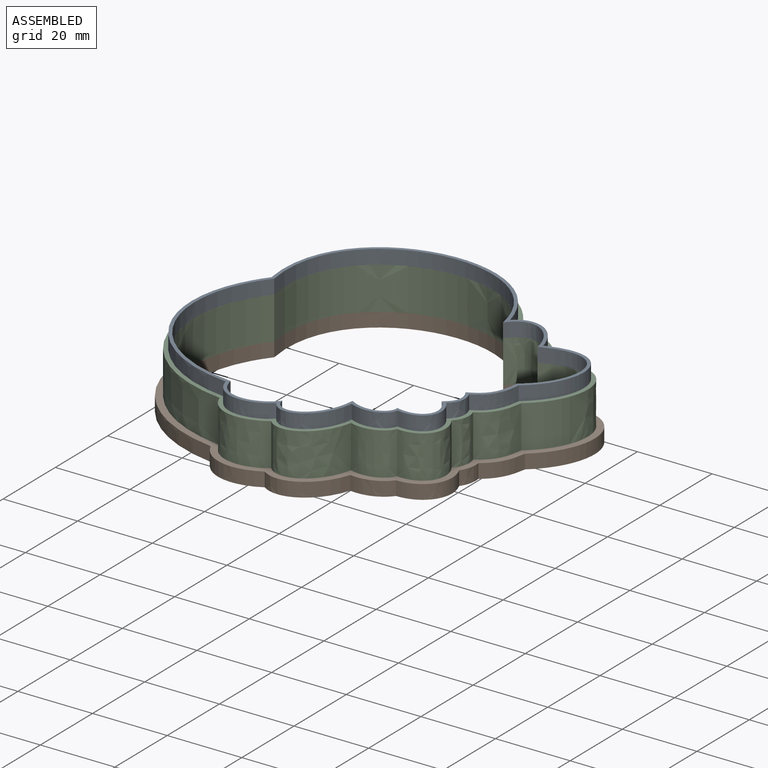
[diagram: assembled view]
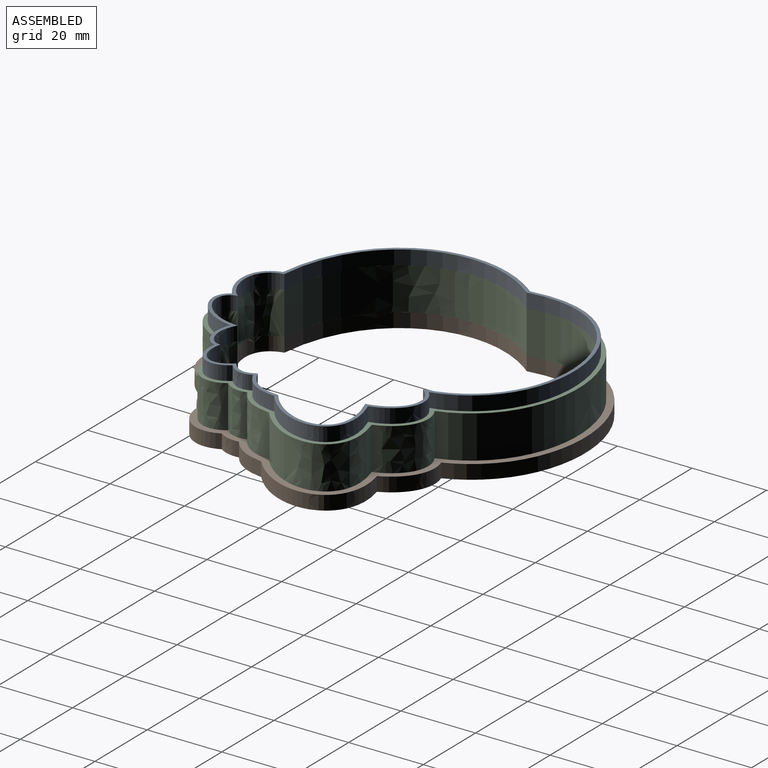
[diagram: assembled view, second angle]
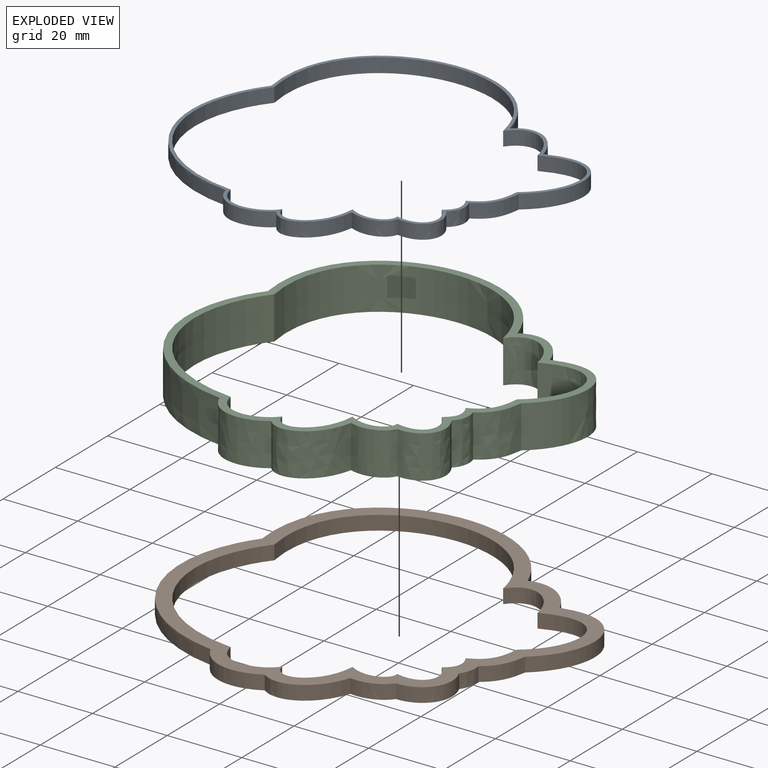
[diagram: exploded view]
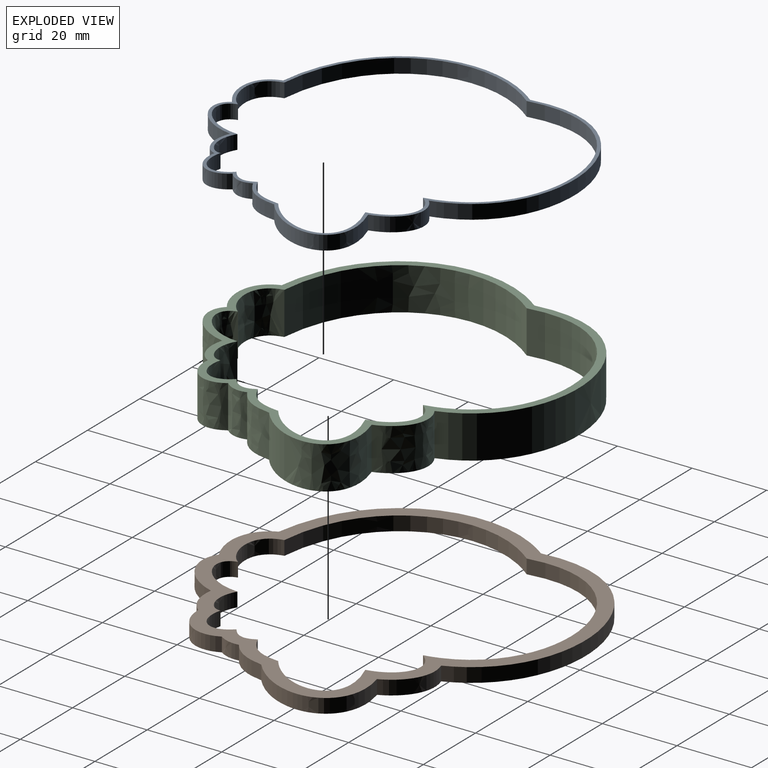
[diagram: exploded view, second angle]
ASSEMBLY  parts=3 mates=2
PART A: 22 faces, bbox 96.3x93.5x3.8 mm
  f0: plane 96.31x93.55mm, normal (0,0,1), area 264mm2, adj f2,f3,f4,f5,f6,f7,f8,f9
  f1: plane 96.31x93.55mm, normal (0,0,-1), area 264mm2, adj f2,f3,f4,f5,f6,f7,f8,f9
  f2: extruded ~13.81x11.45mm, area 80.7mm2, adj f0,f1,f3,f11
  f3: extruded ~10.24x3.81mm, area 45.6mm2, adj f0,f1,f2,f4
  f4: extruded ~9.57x8.18mm, area 60.1mm2, adj f0,f1,f3,f5
  f5: extruded ~6.56x3.81mm, area 28mm2, adj f0,f1,f4,f6
  f6: extruded ~10.06x6.28mm, area 47.7mm2, adj f0,f1,f5,f7
  f7: extruded ~21.46x15.3mm, area 138.6mm2, adj f0,f1,f6,f8
  f8: extruded ~13.63x8.82mm, area 71.5mm2, adj f0,f1,f7,f9
  f9: extruded ~56.03x31.8mm, area 326mm2, adj f0,f1,f8,f10
  f10: extruded ~50.14x30.15mm, area 261.3mm2, adj f0,f1,f9,f11
  f11: extruded ~15.52x5.8mm, area 72.7mm2, adj f0,f1,f2,f10
  f12: extruded ~12.74x11.95mm, area 82.3mm2, adj f0,f1,f13,f21
  f13: extruded ~10.2x3.99mm, area 47.8mm2, adj f0,f1,f12,f14
  f14: extruded ~8.81x8.1mm, area 59.2mm2, adj f0,f1,f13,f15
  f15: extruded ~6.84x3.81mm, area 30.5mm2, adj f0,f1,f14,f16
  f16: extruded ~10.13x6.67mm, area 49.3mm2, adj f0,f1,f15,f17
  f17: extruded ~20.08x15.06mm, area 134.4mm2, adj f0,f1,f16,f18
  f18: extruded ~13.46x9.15mm, area 74.8mm2, adj f0,f1,f17,f19
  f19: extruded ~54.65x31.16mm, area 323.8mm2, adj f0,f1,f18,f20
  f20: extruded ~49.07x29.99mm, area 258mm2, adj f0,f1,f19,f21
  f21: extruded ~15.1x5.73mm, area 73.3mm2, adj f0,f1,f12,f20
PART B: 22 faces, bbox 98.1x96.3x4.2 mm
  f0: plane 98.06x96.33mm, normal (0,0,1), area 1144.2mm2, adj f2,f3,f4,f5,f6,f7,f8,f9
  f1: plane 98.06x96.33mm, normal (0,0,-1), area 1144.2mm2, adj f2,f3,f4,f5,f6,f7,f8,f9
  f2: extruded ~16.39x10.71mm, area 83.1mm2, adj f0,f1,f3,f11
  f3: extruded ~9.79x3.81mm, area 41.6mm2, adj f0,f1,f2,f4
  f4: extruded ~12.17x9.37mm, area 68.7mm2, adj f0,f1,f3,f5
  f5: extruded ~5.52x3.81mm, area 22.2mm2, adj f0,f1,f4,f6
  f6: extruded ~9.88x5.57mm, area 44.6mm2, adj f0,f1,f5,f7
  f7: extruded ~25.93x16.38mm, area 154.1mm2, adj f0,f1,f6,f8
  f8: extruded ~13.82x8.08mm, area 66.2mm2, adj f0,f1,f7,f9
  f9: extruded ~60.61x33.92mm, area 340.2mm2, adj f0,f1,f8,f10
  f10: extruded ~53.6x30.91mm, area 273.1mm2, adj f0,f1,f9,f11
  f11: extruded ~17.28x6.06mm, area 76.5mm2, adj f0,f1,f2,f10
  f12: extruded ~12.74x11.95mm, area 82.3mm2, adj f0,f1,f13,f21
  f13: extruded ~10.2x3.99mm, area 47.8mm2, adj f0,f1,f12,f14
  f14: extruded ~8.81x8.1mm, area 59.2mm2, adj f0,f1,f13,f15
  f15: extruded ~6.84x3.81mm, area 30.5mm2, adj f0,f1,f14,f16
  f16: extruded ~10.13x6.67mm, area 49.3mm2, adj f0,f1,f15,f17
  f17: extruded ~20.08x15.06mm, area 134.4mm2, adj f0,f1,f16,f18
  f18: extruded ~13.46x9.15mm, area 74.8mm2, adj f0,f1,f17,f19
  f19: extruded ~54.65x31.16mm, area 323.8mm2, adj f0,f1,f18,f20
  f20: extruded ~49.07x29.99mm, area 258mm2, adj f0,f1,f19,f21
  f21: extruded ~15.1x5.73mm, area 73.3mm2, adj f0,f1,f12,f20
PART C: 22 faces, bbox 96.3x94.2x11.4 mm
  f0: plane 96.31x94.18mm, normal (0,0,1), area 605.3mm2, adj f2,f3,f4,f5,f6,f7,f8,f9
  f1: plane 96.31x94.18mm, normal (0,0,-1), area 605.3mm2, adj f2,f3,f4,f5,f6,f7,f8,f9
  f2: extruded ~14.93x11.43mm, area 243mm2, adj f0,f1,f3,f11
  f3: extruded ~11.43x10.11mm, area 131.2mm2, adj f0,f1,f2,f4
  f4: extruded ~11.43x10.57mm, area 188.8mm2, adj f0,f1,f3,f5
  f5: extruded ~11.43x6.17mm, area 76.4mm2, adj f0,f1,f4,f6
  f6: extruded ~11.43x9.98mm, area 138.5mm2, adj f0,f1,f5,f7
  f7: extruded ~23.2x15.68mm, area 433.3mm2, adj f0,f1,f6,f8
  f8: extruded ~13.76x11.43mm, area 206.7mm2, adj f0,f1,f7,f9
  f9: extruded ~57.79x32.61mm, area 992.3mm2, adj f0,f1,f8,f10
  f10: extruded ~51.5x30.41mm, area 797.4mm2, adj f0,f1,f9,f11
  f11: extruded ~16.18x11.43mm, area 221mm2, adj f0,f1,f2,f10
  f12: extruded ~12.74x11.95mm, area 246.8mm2, adj f0,f1,f13,f21
  f13: extruded ~11.43x10.2mm, area 143.5mm2, adj f0,f1,f12,f14
  f14: extruded ~11.43x8.81mm, area 177.6mm2, adj f0,f1,f13,f15
  f15: extruded ~11.43x6.84mm, area 91.4mm2, adj f0,f1,f14,f16
  f16: extruded ~11.43x10.13mm, area 147.9mm2, adj f0,f1,f15,f17
  f17: extruded ~20.08x15.06mm, area 403.1mm2, adj f0,f1,f16,f18
  f18: extruded ~13.46x11.43mm, area 224.4mm2, adj f0,f1,f17,f19
  f19: extruded ~54.65x31.16mm, area 971.4mm2, adj f0,f1,f18,f20
  f20: extruded ~49.07x29.99mm, area 774.1mm2, adj f0,f1,f19,f21
  f21: extruded ~15.1x11.43mm, area 219.9mm2, adj f0,f1,f12,f20
PLACE A t=(-133.46,-3.09,11.43)mm
PLACE B t=(-224.53,-2.18,-3.81)mm
PLACE C at identity
MATE fastened B.f0 <-> C.f1  axis (0,0,1) through (-170.4,4.42,0)mm
MATE fastened A.f1 <-> C.f0  axis (0,0,1) through (-170.4,4.42,11.43)mm
